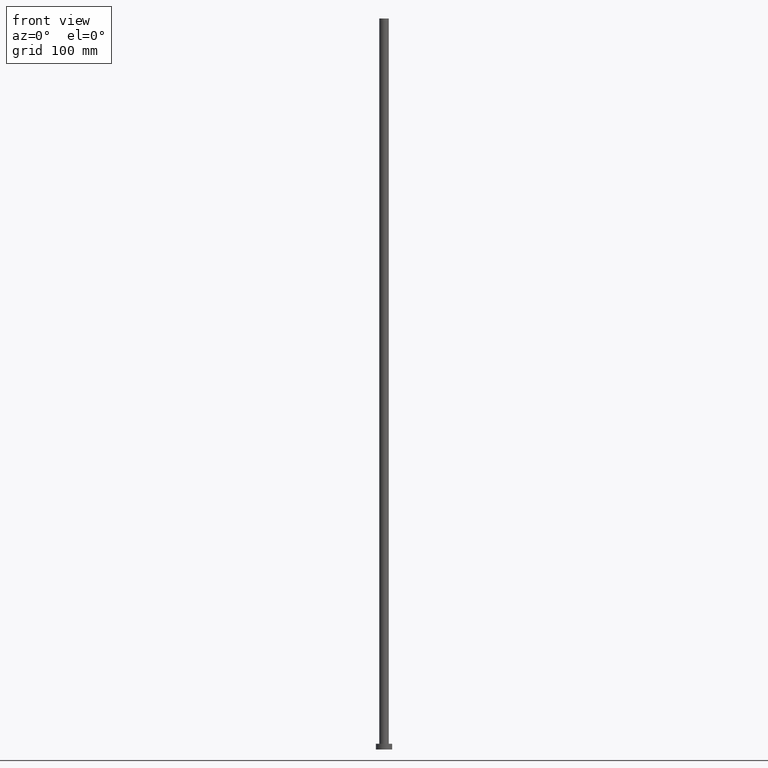
[diagram: clean part render]
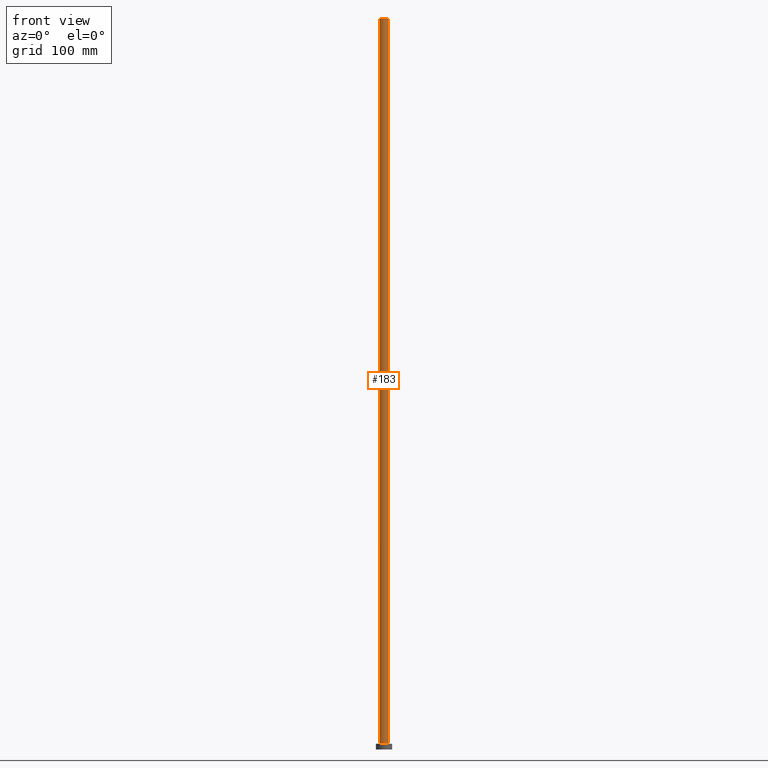
[diagram: same view with one face highlighted and labeled with its STEP entity id]
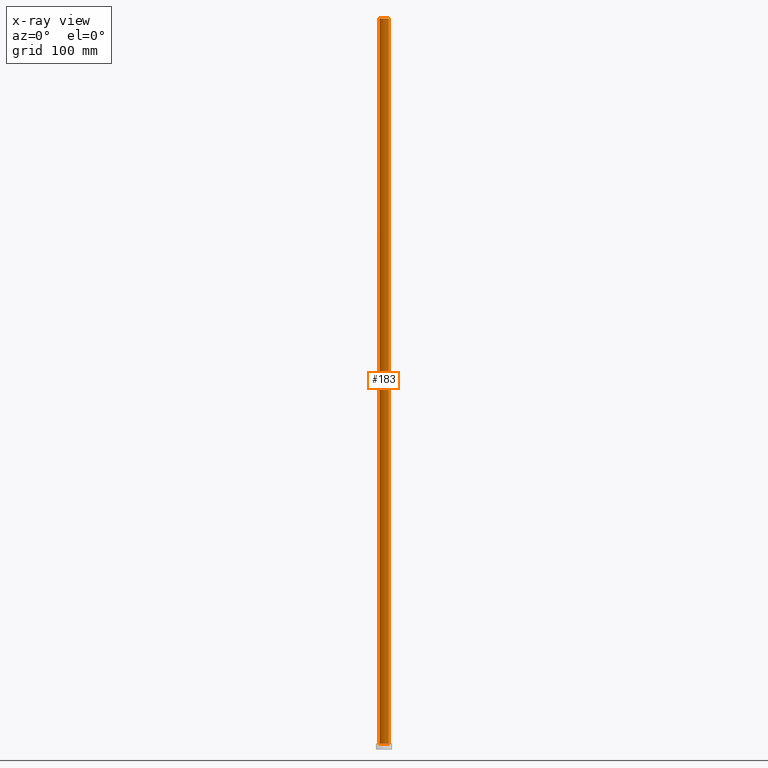
[diagram: x-ray of the same camera — body ghosted, the highlighted face saturated]
A machine part, front view. The second image highlights one B-rep face of the part: STEP entity #183.
The next image is the same camera in x-ray: the body ghosted, the highlighted face saturated — about 0% of this face is hidden behind the body in this view.
In plain terms, the highlighted cylindrical surface (edge-blend (fillet) strip) has radius 4.1 mm, axis along (-0, -0, -1).
Its self-contained STEP definition (entity closure, byte-faithful):
#10 = CARTESIAN_POINT ( 'NONE',  ( 4.099999999999999645, 5.021051876504147385E-16, 630.0000000000000000 ) ) ;
#13 = CARTESIAN_POINT ( 'NONE',  ( 0.000000000000000000, 0.000000000000000000, 630.0000000000000000 ) ) ;
#15 = AXIS2_PLACEMENT_3D ( 'NONE', #13, #80, #29 ) ;
#18 = CIRCLE ( 'NONE', #79, 4.099999999999999645 ) ;
#23 = EDGE_CURVE ( 'NONE', #37, #67, #159, .T. ) ;
#29 = DIRECTION ( 'NONE',  ( -1.000000000000000000, 0.000000000000000000, 0.000000000000000000 ) ) ;
#34 = EDGE_LOOP ( 'NONE', ( #173, #134, #214, #152 ) ) ;
#37 = VERTEX_POINT ( 'NONE', #83 ) ;
#46 = DIRECTION ( 'NONE',  ( -0.000000000000000000, -0.000000000000000000, -1.000000000000000000 ) ) ;
#61 = CARTESIAN_POINT ( 'NONE',  ( 4.099999999999999645, 5.021051876504147385E-16, 630.0000000000000000 ) ) ;
#64 = FACE_OUTER_BOUND ( 'NONE', #34, .T. ) ;
#67 = VERTEX_POINT ( 'NONE', #117 ) ;
#70 = CIRCLE ( 'NONE', #129, 4.099999999999999645 ) ;
#72 = EDGE_CURVE ( 'NONE', #37, #182, #18, .T. ) ;
#79 = AXIS2_PLACEMENT_3D ( 'NONE', #245, #154, #241 ) ;
#80 = DIRECTION ( 'NONE',  ( -0.000000000000000000, -0.000000000000000000, -1.000000000000000000 ) ) ;
#83 = CARTESIAN_POINT ( 'NONE',  ( -4.099999999999999645, 0.000000000000000000, 630.0000000000000000 ) ) ;
#87 = LINE ( 'NONE', #10, #177 ) ;
#100 = CARTESIAN_POINT ( 'NONE',  ( -4.099999999999999645, 0.000000000000000000, 630.0000000000000000 ) ) ;
#117 = CARTESIAN_POINT ( 'NONE',  ( -4.099999999999999645, 0.000000000000000000, 5.000000000000000000 ) ) ;
#122 = DIRECTION ( 'NONE',  ( -0.000000000000000000, -0.000000000000000000, -1.000000000000000000 ) ) ;
#123 = CYLINDRICAL_SURFACE ( 'NONE', #15, 4.099999999999999645 ) ;
#125 = CARTESIAN_POINT ( 'NONE',  ( 4.099999999999999645, 5.021051876504147385E-16, 5.000000000000000000 ) ) ;
#129 = AXIS2_PLACEMENT_3D ( 'NONE', #203, #226, #228 ) ;
#133 = VERTEX_POINT ( 'NONE', #125 ) ;
#134 = ORIENTED_EDGE ( 'NONE', *, *, #72, .F. ) ;
#152 = ORIENTED_EDGE ( 'NONE', *, *, #231, .T. ) ;
#154 = DIRECTION ( 'NONE',  ( 0.000000000000000000, 0.000000000000000000, 1.000000000000000000 ) ) ;
#159 = LINE ( 'NONE', #100, #215 ) ;
#173 = ORIENTED_EDGE ( 'NONE', *, *, #237, .F. ) ;
#177 = VECTOR ( 'NONE', #46, 1000.000000000000000 ) ;
#182 = VERTEX_POINT ( 'NONE', #61 ) ;
#183 = ADVANCED_FACE ( 'NONE', ( #64 ), #123, .T. ) ;
#203 = CARTESIAN_POINT ( 'NONE',  ( 0.000000000000000000, 0.000000000000000000, 5.000000000000000000 ) ) ;
#214 = ORIENTED_EDGE ( 'NONE', *, *, #23, .T. ) ;
#215 = VECTOR ( 'NONE', #122, 1000.000000000000000 ) ;
#226 = DIRECTION ( 'NONE',  ( 0.000000000000000000, 0.000000000000000000, 1.000000000000000000 ) ) ;
#228 = DIRECTION ( 'NONE',  ( 1.000000000000000000, 0.000000000000000000, 0.000000000000000000 ) ) ;
#231 = EDGE_CURVE ( 'NONE', #67, #133, #70, .T. ) ;
#237 = EDGE_CURVE ( 'NONE', #182, #133, #87, .T. ) ;
#241 = DIRECTION ( 'NONE',  ( 1.000000000000000000, 0.000000000000000000, 0.000000000000000000 ) ) ;
#245 = CARTESIAN_POINT ( 'NONE',  ( 0.000000000000000000, 0.000000000000000000, 630.0000000000000000 ) ) ;